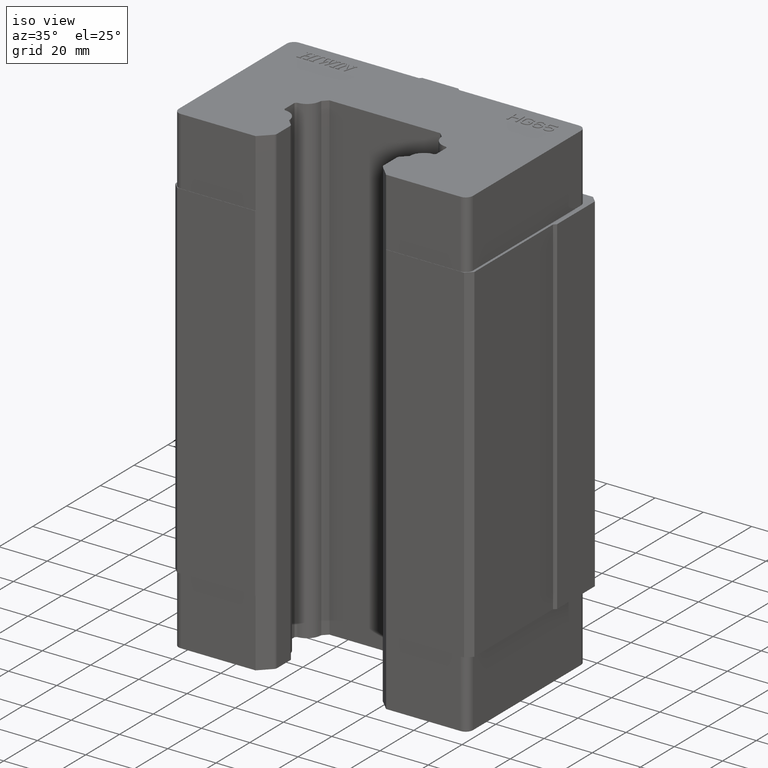
[diagram: clean part render]
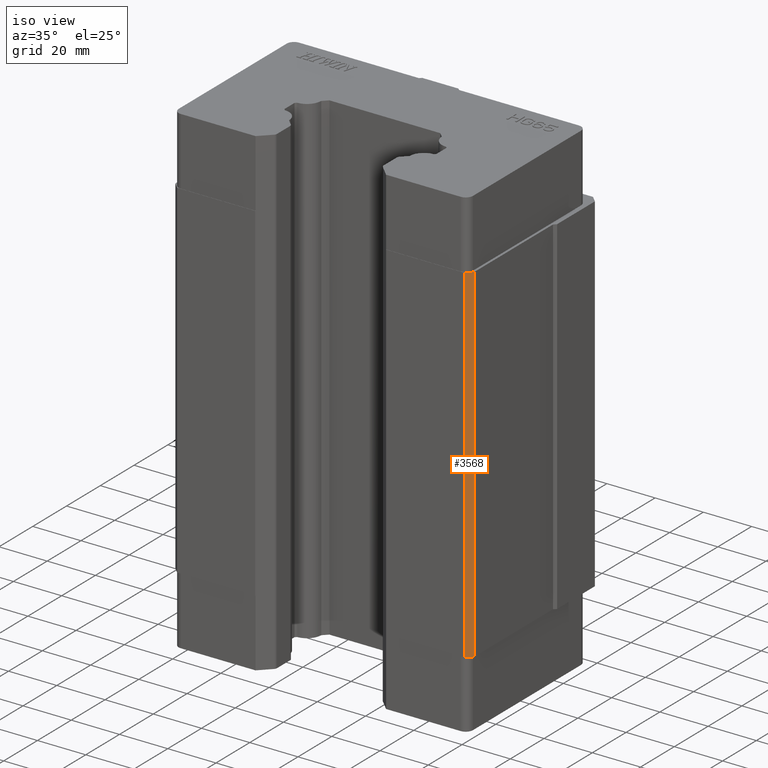
[diagram: same view with one face highlighted and labeled with its STEP entity id]
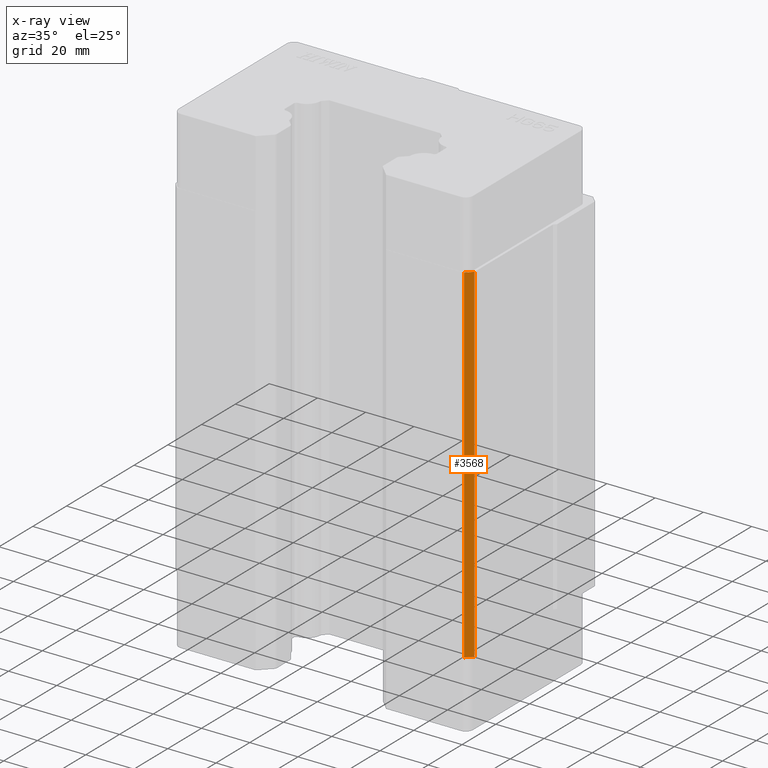
[diagram: x-ray of the same camera — body ghosted, the highlighted face saturated]
A machine part, iso view. The second image highlights one B-rep face of the part: STEP entity #3568.
The next image is the same camera in x-ray: the body ghosted, the highlighted face saturated — about 0% of this face is hidden behind the body in this view.
In plain terms, the highlighted planar face has unit normal (0.7071, -0.7071, 0).
Its self-contained STEP definition (entity closure, byte-faithful):
#3568 = ADVANCED_FACE ( 'NONE', ( #11163 ), #11162, .T. ) ;
#3569 = ORIENTED_EDGE ( 'NONE', *, *, #3584, .F. ) ;
#3570 = VERTEX_POINT ( 'NONE', #11157 ) ;
#3577 = EDGE_LOOP ( 'NONE', ( #3569, #3586, #3645, #3644 ) ) ;
#3584 = EDGE_CURVE ( 'NONE', #3570, #3585, #11199, .T. ) ;
#3585 = VERTEX_POINT ( 'NONE', #11195 ) ;
#3586 = ORIENTED_EDGE ( 'NONE', *, *, #3587, .T. ) ;
#3587 = EDGE_CURVE ( 'NONE', #3570, #3588, #11194, .T. ) ;
#3588 = VERTEX_POINT ( 'NONE', #11190 ) ;
#3640 = VERTEX_POINT ( 'NONE', #11238 ) ;
#3641 = EDGE_CURVE ( 'NONE', #3640, #3588, #11237, .T. ) ;
#3643 = EDGE_CURVE ( 'NONE', #3585, #3640, #11233, .T. ) ;
#3644 = ORIENTED_EDGE ( 'NONE', *, *, #3643, .F. ) ;
#3645 = ORIENTED_EDGE ( 'NONE', *, *, #3641, .F. ) ;
#11157 = CARTESIAN_POINT ( 'NONE',  ( 59.49976741850663600, -38.00093013071040100, -72.09999999999999400 ) ) ;
#11158 = DIRECTION ( 'NONE',  ( 0.7071290111491047600, 0.7070845505251047700, 0.0000000000000000000 ) ) ;
#11159 = DIRECTION ( 'NONE',  ( 0.7070845505251047700, -0.7071290111491047600, 0.0000000000000000000 ) ) ;
#11160 = CARTESIAN_POINT ( 'NONE',  ( 59.49976746574999700, -38.00093008347000300, -72.09999999999999400 ) ) ;
#11161 = AXIS2_PLACEMENT_3D ( 'NONE', #11160, #11159, #11158 ) ;
#11162 = PLANE ( 'NONE',  #11161 ) ;
#11163 = FACE_OUTER_BOUND ( 'NONE', #3577, .T. ) ;
#11190 = CARTESIAN_POINT ( 'NONE',  ( 61.99977932547999900, -35.50107541158883600, -72.09999999999999400 ) ) ;
#11191 = DIRECTION ( 'NONE',  ( 0.7071290111491047600, 0.7070845505251047700, 0.0000000000000000000 ) ) ;
#11192 = VECTOR ( 'NONE', #11191, 1000.000000000000000 ) ;
#11193 = CARTESIAN_POINT ( 'NONE',  ( 59.49976746574999700, -38.00093008347000300, -72.09999999999999400 ) ) ;
#11194 = LINE ( 'NONE', #11193, #11192 ) ;
#11195 = CARTESIAN_POINT ( 'NONE',  ( 59.49976740905839300, -38.00093014015804700, 72.09999999999999400 ) ) ;
#11196 = DIRECTION ( 'NONE',  ( 0.0000000000000000000, 0.0000000000000000000, 1.000000000000000000 ) ) ;
#11197 = VECTOR ( 'NONE', #11196, 1000.000000000000000 ) ;
#11198 = CARTESIAN_POINT ( 'NONE',  ( 59.49976740905839300, -38.00093014015804700, -72.09999999999999400 ) ) ;
#11199 = LINE ( 'NONE', #11198, #11197 ) ;
#11232 = CARTESIAN_POINT ( 'NONE',  ( 48.74847815904311700, -48.75154340457335400, 72.09999999999999400 ) ) ;
#11233 = LINE ( 'NONE', #11232, #11294 ) ;
#11234 = DIRECTION ( 'NONE',  ( 0.0000000000000000000, 0.0000000000000000000, -1.000000000000000000 ) ) ;
#11235 = VECTOR ( 'NONE', #11234, 1000.000000000000000 ) ;
#11236 = CARTESIAN_POINT ( 'NONE',  ( 61.99977932547999900, -35.50107541159000800, -72.09999999999999400 ) ) ;
#11237 = LINE ( 'NONE', #11236, #11235 ) ;
#11238 = CARTESIAN_POINT ( 'NONE',  ( 61.99977932548000600, -35.50107541158883600, 72.09999999999999400 ) ) ;
#11293 = DIRECTION ( 'NONE',  ( 0.7071290111491047600, 0.7070845505251047700, 0.0000000000000000000 ) ) ;
#11294 = VECTOR ( 'NONE', #11293, 1000.000000000000000 ) ;